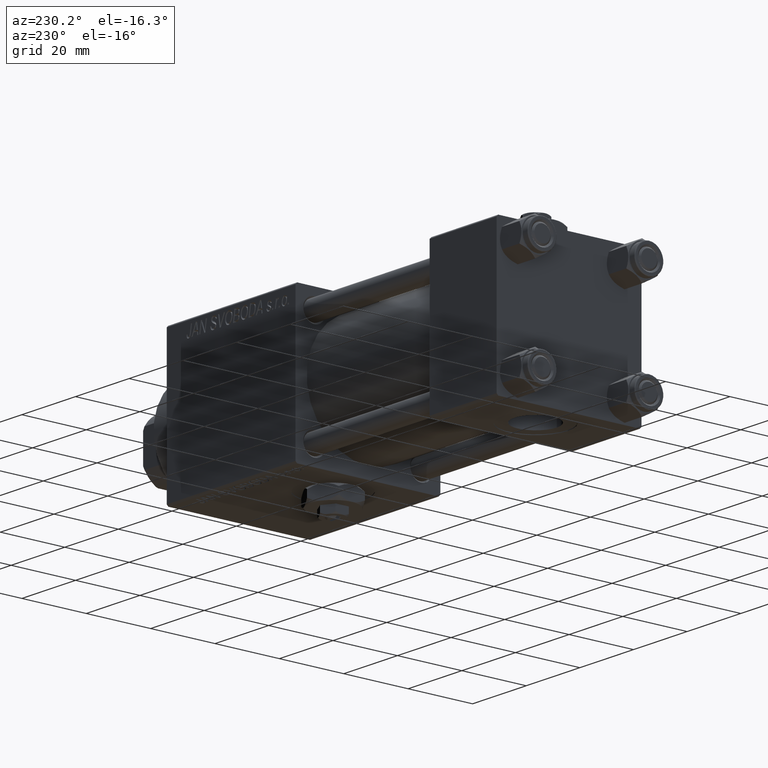
[diagram: clean part render]
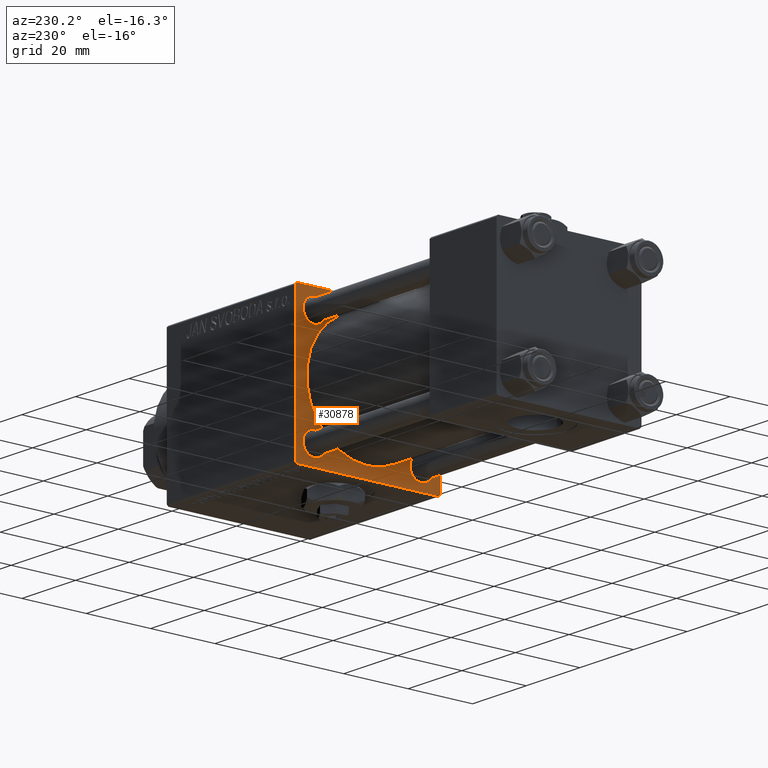
[diagram: same view with one face highlighted and labeled with its STEP entity id]
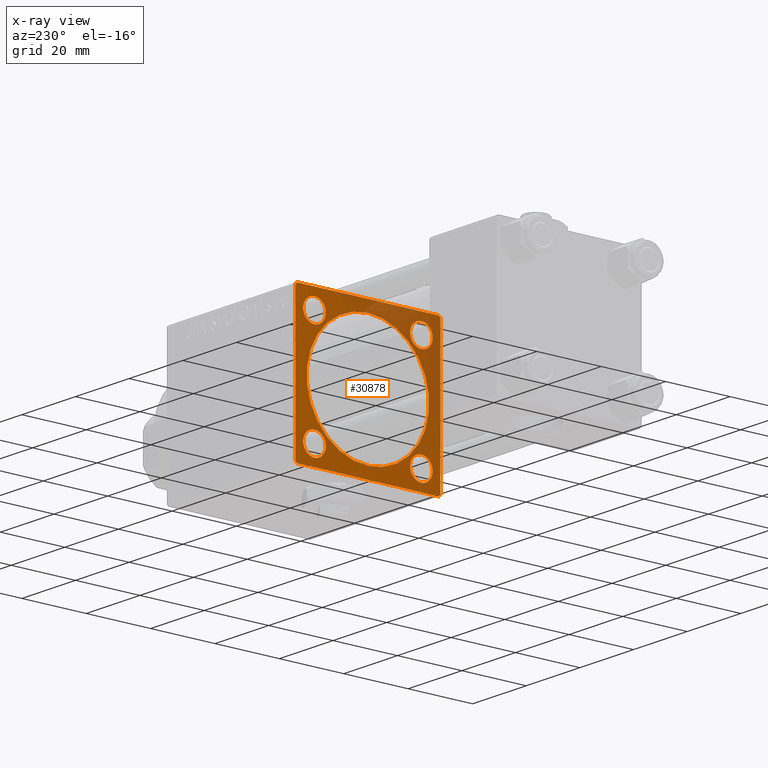
[diagram: x-ray of the same camera — body ghosted, the highlighted face saturated]
A machine part, auxiliary view. The second image highlights one B-rep face of the part: STEP entity #30878.
The next image is the same camera in x-ray: the body ghosted, the highlighted face saturated — about 37% of this face is hidden behind the body in this view.
In plain terms, the highlighted planar face has unit normal (-1, 0, 0).
Its self-contained STEP definition (entity closure, byte-faithful):
#45 = EDGE_CURVE ( 'NONE', #10853, #47856, #13967, .T. ) ;
#492 = ORIENTED_EDGE ( 'NONE', *, *, #47070, .T. ) ;
#667 = ORIENTED_EDGE ( 'NONE', *, *, #21660, .T. ) ;
#858 = CARTESIAN_POINT ( 'NONE',  ( 75.00000000000001421, 22.50000000000000355, 22.50000000000000355 ) ) ;
#1552 = VECTOR ( 'NONE', #40838, 1000.000000000000000 ) ;
#1576 = EDGE_CURVE ( 'NONE', #42568, #34732, #4702, .T. ) ;
#1762 = ORIENTED_EDGE ( 'NONE', *, *, #45, .T. ) ;
#1943 = CIRCLE ( 'NONE', #39127, 3.500000000000010214 ) ;
#2215 = EDGE_CURVE ( 'NONE', #15468, #42807, #41963, .T. ) ;
#2947 = AXIS2_PLACEMENT_3D ( 'NONE', #35890, #19743, #19479 ) ;
#3145 = CARTESIAN_POINT ( 'NONE',  ( 75.00000000000001421, -16.59999999999999076, -13.09999999999999787 ) ) ;
#4283 = VECTOR ( 'NONE', #27649, 1000.000000000000000 ) ;
#4702 = CIRCLE ( 'NONE', #40203, 19.00000000000000000 ) ;
#5434 = VERTEX_POINT ( 'NONE', #37546 ) ;
#5896 = EDGE_CURVE ( 'NONE', #5434, #31589, #15002, .T. ) ;
#6422 = DIRECTION ( 'NONE',  ( 1.000000000000000000, -0.000000000000000000, 0.000000000000000000 ) ) ;
#6495 = EDGE_LOOP ( 'NONE', ( #1762, #45090 ) ) ;
#6851 = CARTESIAN_POINT ( 'NONE',  ( 75.00000000000001421, -22.25000000000015277, -22.24999999999984013 ) ) ;
#6998 = VERTEX_POINT ( 'NONE', #42385 ) ;
#7178 = VECTOR ( 'NONE', #46569, 999.9999999999998863 ) ;
#7538 = CARTESIAN_POINT ( 'NONE',  ( 75.00000000000001421, 16.59999999999999787, -16.60000000000000497 ) ) ;
#7647 = CARTESIAN_POINT ( 'NONE',  ( 75.00000000000001421, -21.99999999999998224, 22.49999999999999289 ) ) ;
#7790 = CARTESIAN_POINT ( 'NONE',  ( 75.00000000000001421, -16.59999999999999076, 20.10000000000001918 ) ) ;
#9829 = EDGE_CURVE ( 'NONE', #38059, #32277, #15857, .T. ) ;
#10016 = FACE_BOUND ( 'NONE', #6495, .T. ) ;
#10530 = DIRECTION ( 'NONE',  ( 1.000000000000000000, 0.000000000000000000, 0.000000000000000000 ) ) ;
#10555 = ORIENTED_EDGE ( 'NONE', *, *, #1576, .T. ) ;
#10788 = FACE_OUTER_BOUND ( 'NONE', #16752, .T. ) ;
#10853 = VERTEX_POINT ( 'NONE', #3145 ) ;
#11537 = CARTESIAN_POINT ( 'NONE',  ( 75.00000000000001421, -22.49999999999999645, 22.00000000000000711 ) ) ;
#11630 = CARTESIAN_POINT ( 'NONE',  ( 75.00000000000001421, -16.59999999999999076, -16.60000000000000853 ) ) ;
#11656 = DIRECTION ( 'NONE',  ( 0.000000000000000000, 0.000000000000000000, 1.000000000000000000 ) ) ;
#11900 = ORIENTED_EDGE ( 'NONE', *, *, #5896, .T. ) ;
#11965 = DIRECTION ( 'NONE',  ( 1.000000000000000000, -0.000000000000000000, 0.000000000000000000 ) ) ;
#11986 = CARTESIAN_POINT ( 'NONE',  ( 75.00000000000001421, 22.24999999999968026, 22.25000000000029488 ) ) ;
#12303 = CARTESIAN_POINT ( 'NONE',  ( 75.00000000000001421, 22.50000000000000355, 21.99999999999997513 ) ) ;
#12505 = DIRECTION ( 'NONE',  ( 0.000000000000000000, -1.000000000000000000, -2.312964634635742957E-16 ) ) ;
#12785 = LINE ( 'NONE', #11986, #1552 ) ;
#13332 = DIRECTION ( 'NONE',  ( 0.000000000000000000, 0.000000000000000000, -1.000000000000000000 ) ) ;
#13367 = DIRECTION ( 'NONE',  ( 0.000000000000000000, -1.000000000000000000, -7.709882115452476934E-17 ) ) ;
#13526 = VECTOR ( 'NONE', #27534, 1000.000000000000000 ) ;
#13866 = LINE ( 'NONE', #21530, #52138 ) ;
#13967 = CIRCLE ( 'NONE', #2947, 3.500000000000010214 ) ;
#14715 = DIRECTION ( 'NONE',  ( 1.000000000000000000, -0.000000000000000000, 0.000000000000000000 ) ) ;
#15002 = CIRCLE ( 'NONE', #38664, 3.500000000000010214 ) ;
#15235 = CIRCLE ( 'NONE', #47374, 3.500000000000010214 ) ;
#15468 = VERTEX_POINT ( 'NONE', #32531 ) ;
#15612 = CARTESIAN_POINT ( 'NONE',  ( 75.00000000000001421, 22.00000000000000355, -22.49999999999999645 ) ) ;
#15665 = CARTESIAN_POINT ( 'NONE',  ( 75.00000000000001421, -16.59999999999999076, 16.60000000000000853 ) ) ;
#15857 = CIRCLE ( 'NONE', #19222, 3.500000000000013323 ) ;
#15970 = DIRECTION ( 'NONE',  ( 1.000000000000000000, -0.000000000000000000, 0.000000000000000000 ) ) ;
#16480 = CARTESIAN_POINT ( 'NONE',  ( 75.00000000000001421, 22.50000000000000355, -21.99999999999999645 ) ) ;
#16752 = EDGE_LOOP ( 'NONE', ( #20595, #45369, #24376, #492, #23160, #26663, #35221, #667 ) ) ;
#16862 = VERTEX_POINT ( 'NONE', #16480 ) ;
#16888 = EDGE_CURVE ( 'NONE', #6998, #46346, #12785, .T. ) ;
#18242 = EDGE_LOOP ( 'NONE', ( #10555, #40445 ) ) ;
#18502 = LINE ( 'NONE', #6851, #7178 ) ;
#18819 = CARTESIAN_POINT ( 'NONE',  ( 75.00000000000001421, -22.49999999999999645, -21.99999999999997868 ) ) ;
#18866 = ORIENTED_EDGE ( 'NONE', *, *, #42877, .T. ) ;
#18986 = DIRECTION ( 'NONE',  ( -1.000000000000000000, 0.000000000000000000, -0.000000000000000000 ) ) ;
#19222 = AXIS2_PLACEMENT_3D ( 'NONE', #26827, #35553, #19395 ) ;
#19395 = DIRECTION ( 'NONE',  ( 0.000000000000000000, 0.000000000000000000, 1.000000000000000000 ) ) ;
#19479 = DIRECTION ( 'NONE',  ( 0.000000000000000000, 0.000000000000000000, 1.000000000000000000 ) ) ;
#19743 = DIRECTION ( 'NONE',  ( 1.000000000000000000, -0.000000000000000000, 0.000000000000000000 ) ) ;
#20340 = VECTOR ( 'NONE', #12505, 1000.000000000000000 ) ;
#20357 = DIRECTION ( 'NONE',  ( 1.000000000000000000, -0.000000000000000000, 0.000000000000000000 ) ) ;
#20595 = ORIENTED_EDGE ( 'NONE', *, *, #51995, .T. ) ;
#21011 = DIRECTION ( 'NONE',  ( 1.000000000000000000, 0.000000000000000000, 0.000000000000000000 ) ) ;
#21530 = CARTESIAN_POINT ( 'NONE',  ( 75.00000000000001421, -22.49999999999999645, 22.49999999999999289 ) ) ;
#21660 = EDGE_CURVE ( 'NONE', #16862, #26622, #32707, .T. ) ;
#22173 = DIRECTION ( 'NONE',  ( 0.000000000000000000, 0.000000000000000000, -1.000000000000000000 ) ) ;
#22306 = DIRECTION ( 'NONE',  ( 0.000000000000000000, 0.000000000000000000, 1.000000000000000000 ) ) ;
#22339 = CARTESIAN_POINT ( 'NONE',  ( 75.00000000000001421, 22.50000000000000355, -22.49999999999999645 ) ) ;
#22862 = ORIENTED_EDGE ( 'NONE', *, *, #9829, .T. ) ;
#23160 = ORIENTED_EDGE ( 'NONE', *, *, #49960, .F. ) ;
#23372 = CARTESIAN_POINT ( 'NONE',  ( 75.00000000000001421, -16.59999999999999076, 13.09999999999999432 ) ) ;
#23649 = VECTOR ( 'NONE', #33241, 1000.000000000000000 ) ;
#23678 = DIRECTION ( 'NONE',  ( 0.000000000000000000, 0.000000000000000000, 1.000000000000000000 ) ) ;
#23895 = CARTESIAN_POINT ( 'NONE',  ( 75.00000000000001421, 16.59999999999999787, -16.60000000000000497 ) ) ;
#24376 = ORIENTED_EDGE ( 'NONE', *, *, #41913, .F. ) ;
#24927 = LINE ( 'NONE', #858, #20340 ) ;
#25035 = EDGE_CURVE ( 'NONE', #34732, #42568, #41567, .T. ) ;
#25128 = ORIENTED_EDGE ( 'NONE', *, *, #2215, .T. ) ;
#25930 = EDGE_LOOP ( 'NONE', ( #50387, #11900 ) ) ;
#26025 = CARTESIAN_POINT ( 'NONE',  ( 75.00000000000001421, 16.59999999999999787, 16.60000000000000497 ) ) ;
#26564 = VERTEX_POINT ( 'NONE', #18819 ) ;
#26622 = VERTEX_POINT ( 'NONE', #15612 ) ;
#26663 = ORIENTED_EDGE ( 'NONE', *, *, #16888, .T. ) ;
#26732 = AXIS2_PLACEMENT_3D ( 'NONE', #26025, #6422, #22306 ) ;
#26827 = CARTESIAN_POINT ( 'NONE',  ( 75.00000000000001421, -16.59999999999999076, 16.60000000000000853 ) ) ;
#26936 = CARTESIAN_POINT ( 'NONE',  ( 75.00000000000001421, 0.000000000000000000, 0.000000000000000000 ) ) ;
#27534 = DIRECTION ( 'NONE',  ( 0.000000000000000000, 0.000000000000000000, -1.000000000000000000 ) ) ;
#27649 = DIRECTION ( 'NONE',  ( -0.000000000000000000, 0.7071067811865573427, 0.7071067811865378028 ) ) ;
#28035 = CARTESIAN_POINT ( 'NONE',  ( 75.00000000000001421, 16.59999999999999787, -13.09999999999999432 ) ) ;
#28327 = DIRECTION ( 'NONE',  ( 1.000000000000000000, -0.000000000000000000, 0.000000000000000000 ) ) ;
#28456 = CARTESIAN_POINT ( 'NONE',  ( 75.00000000000001421, 22.24999999999969802, -22.25000000000031619 ) ) ;
#29520 = LINE ( 'NONE', #22339, #40712 ) ;
#30142 = PLANE ( 'NONE',  #31503 ) ;
#30339 = AXIS2_PLACEMENT_3D ( 'NONE', #15665, #11965, #35802 ) ;
#30592 = VERTEX_POINT ( 'NONE', #7647 ) ;
#30659 = CARTESIAN_POINT ( 'NONE',  ( 75.00000000000001421, -2.602085213965210642E-15, 0.000000000000000000 ) ) ;
#30865 = CARTESIAN_POINT ( 'NONE',  ( 75.00000000000001421, -22.24999999999969447, 22.25000000000030909 ) ) ;
#30878 = ADVANCED_FACE ( 'NONE', ( #30914, #47053, #43335, #10016, #38334, #10788 ), #30142, .T. ) ;
#30914 = FACE_BOUND ( 'NONE', #42527, .T. ) ;
#31211 = CIRCLE ( 'NONE', #30339, 3.500000000000013323 ) ;
#31429 = AXIS2_PLACEMENT_3D ( 'NONE', #50378, #21011, #49606 ) ;
#31503 = AXIS2_PLACEMENT_3D ( 'NONE', #26936, #18986, #34121 ) ;
#31589 = VERTEX_POINT ( 'NONE', #28035 ) ;
#31655 = EDGE_CURVE ( 'NONE', #47856, #10853, #1943, .T. ) ;
#32277 = VERTEX_POINT ( 'NONE', #7790 ) ;
#32531 = CARTESIAN_POINT ( 'NONE',  ( 75.00000000000001421, 16.59999999999999787, 20.10000000000001208 ) ) ;
#32683 = ORIENTED_EDGE ( 'NONE', *, *, #46838, .T. ) ;
#32707 = LINE ( 'NONE', #28456, #23649 ) ;
#33241 = DIRECTION ( 'NONE',  ( -0.000000000000000000, -0.7071067811865573427, -0.7071067811865378028 ) ) ;
#34121 = DIRECTION ( 'NONE',  ( -0.000000000000000000, 0.000000000000000000, 1.000000000000000000 ) ) ;
#34732 = VERTEX_POINT ( 'NONE', #37737 ) ;
#35221 = ORIENTED_EDGE ( 'NONE', *, *, #44133, .T. ) ;
#35553 = DIRECTION ( 'NONE',  ( 1.000000000000000000, -0.000000000000000000, 0.000000000000000000 ) ) ;
#35802 = DIRECTION ( 'NONE',  ( 0.000000000000000000, 0.000000000000000000, 1.000000000000000000 ) ) ;
#35857 = CARTESIAN_POINT ( 'NONE',  ( 75.00000000000001421, -2.602085213965210642E-15, 19.00000000000000000 ) ) ;
#35890 = CARTESIAN_POINT ( 'NONE',  ( 75.00000000000001421, -16.59999999999999076, -16.60000000000000853 ) ) ;
#36094 = DIRECTION ( 'NONE',  ( 0.000000000000000000, 0.000000000000000000, 1.000000000000000000 ) ) ;
#36373 = EDGE_CURVE ( 'NONE', #51268, #26564, #18502, .T. ) ;
#36511 = DIRECTION ( 'NONE',  ( 0.000000000000000000, 0.000000000000000000, 1.000000000000000000 ) ) ;
#37252 = AXIS2_PLACEMENT_3D ( 'NONE', #47919, #28327, #11656 ) ;
#37546 = CARTESIAN_POINT ( 'NONE',  ( 75.00000000000001421, 16.59999999999999787, -20.10000000000001208 ) ) ;
#37668 = VERTEX_POINT ( 'NONE', #11537 ) ;
#37737 = CARTESIAN_POINT ( 'NONE',  ( 75.00000000000001421, -2.752562955852396712E-16, -19.00000000000000000 ) ) ;
#38059 = VERTEX_POINT ( 'NONE', #23372 ) ;
#38334 = FACE_BOUND ( 'NONE', #18242, .T. ) ;
#38664 = AXIS2_PLACEMENT_3D ( 'NONE', #23895, #15970, #36094 ) ;
#38817 = CIRCLE ( 'NONE', #37252, 3.500000000000010214 ) ;
#39127 = AXIS2_PLACEMENT_3D ( 'NONE', #11630, #20357, #36511 ) ;
#39453 = LINE ( 'NONE', #51367, #13526 ) ;
#40203 = AXIS2_PLACEMENT_3D ( 'NONE', #30659, #10530, #22173 ) ;
#40445 = ORIENTED_EDGE ( 'NONE', *, *, #25035, .T. ) ;
#40712 = VECTOR ( 'NONE', #13367, 1000.000000000000000 ) ;
#40838 = DIRECTION ( 'NONE',  ( 0.000000000000000000, 0.7071067811865573427, -0.7071067811865378028 ) ) ;
#41567 = CIRCLE ( 'NONE', #31429, 19.00000000000000000 ) ;
#41913 = EDGE_CURVE ( 'NONE', #37668, #26564, #13866, .T. ) ;
#41963 = CIRCLE ( 'NONE', #26732, 3.500000000000010214 ) ;
#42193 = CARTESIAN_POINT ( 'NONE',  ( 75.00000000000001421, 16.59999999999999787, 13.09999999999999432 ) ) ;
#42385 = CARTESIAN_POINT ( 'NONE',  ( 75.00000000000001421, 21.99999999999996092, 22.50000000000000355 ) ) ;
#42527 = EDGE_LOOP ( 'NONE', ( #18866, #22862 ) ) ;
#42568 = VERTEX_POINT ( 'NONE', #35857 ) ;
#42807 = VERTEX_POINT ( 'NONE', #42193 ) ;
#42877 = EDGE_CURVE ( 'NONE', #32277, #38059, #31211, .T. ) ;
#43025 = LINE ( 'NONE', #30865, #4283 ) ;
#43335 = FACE_BOUND ( 'NONE', #25930, .T. ) ;
#44133 = EDGE_CURVE ( 'NONE', #46346, #16862, #39453, .T. ) ;
#45090 = ORIENTED_EDGE ( 'NONE', *, *, #31655, .T. ) ;
#45369 = ORIENTED_EDGE ( 'NONE', *, *, #36373, .T. ) ;
#46159 = EDGE_CURVE ( 'NONE', #31589, #5434, #15235, .T. ) ;
#46346 = VERTEX_POINT ( 'NONE', #12303 ) ;
#46568 = CARTESIAN_POINT ( 'NONE',  ( 75.00000000000001421, -21.99999999999998224, -22.50000000000000000 ) ) ;
#46569 = DIRECTION ( 'NONE',  ( 0.000000000000000000, -0.7071067811865425767, 0.7071067811865525687 ) ) ;
#46838 = EDGE_CURVE ( 'NONE', #42807, #15468, #38817, .T. ) ;
#47053 = FACE_BOUND ( 'NONE', #49716, .T. ) ;
#47070 = EDGE_CURVE ( 'NONE', #37668, #30592, #43025, .T. ) ;
#47374 = AXIS2_PLACEMENT_3D ( 'NONE', #7538, #14715, #23678 ) ;
#47856 = VERTEX_POINT ( 'NONE', #49753 ) ;
#47919 = CARTESIAN_POINT ( 'NONE',  ( 75.00000000000001421, 16.59999999999999787, 16.60000000000000497 ) ) ;
#49606 = DIRECTION ( 'NONE',  ( 0.000000000000000000, 0.000000000000000000, -1.000000000000000000 ) ) ;
#49716 = EDGE_LOOP ( 'NONE', ( #25128, #32683 ) ) ;
#49753 = CARTESIAN_POINT ( 'NONE',  ( 75.00000000000001421, -16.59999999999999076, -20.10000000000001563 ) ) ;
#49960 = EDGE_CURVE ( 'NONE', #6998, #30592, #24927, .T. ) ;
#50378 = CARTESIAN_POINT ( 'NONE',  ( 75.00000000000001421, -2.602085213965210642E-15, 0.000000000000000000 ) ) ;
#50387 = ORIENTED_EDGE ( 'NONE', *, *, #46159, .T. ) ;
#51268 = VERTEX_POINT ( 'NONE', #46568 ) ;
#51367 = CARTESIAN_POINT ( 'NONE',  ( 75.00000000000001421, 22.50000000000000355, 22.50000000000000355 ) ) ;
#51995 = EDGE_CURVE ( 'NONE', #26622, #51268, #29520, .T. ) ;
#52138 = VECTOR ( 'NONE', #13332, 1000.000000000000000 ) ;